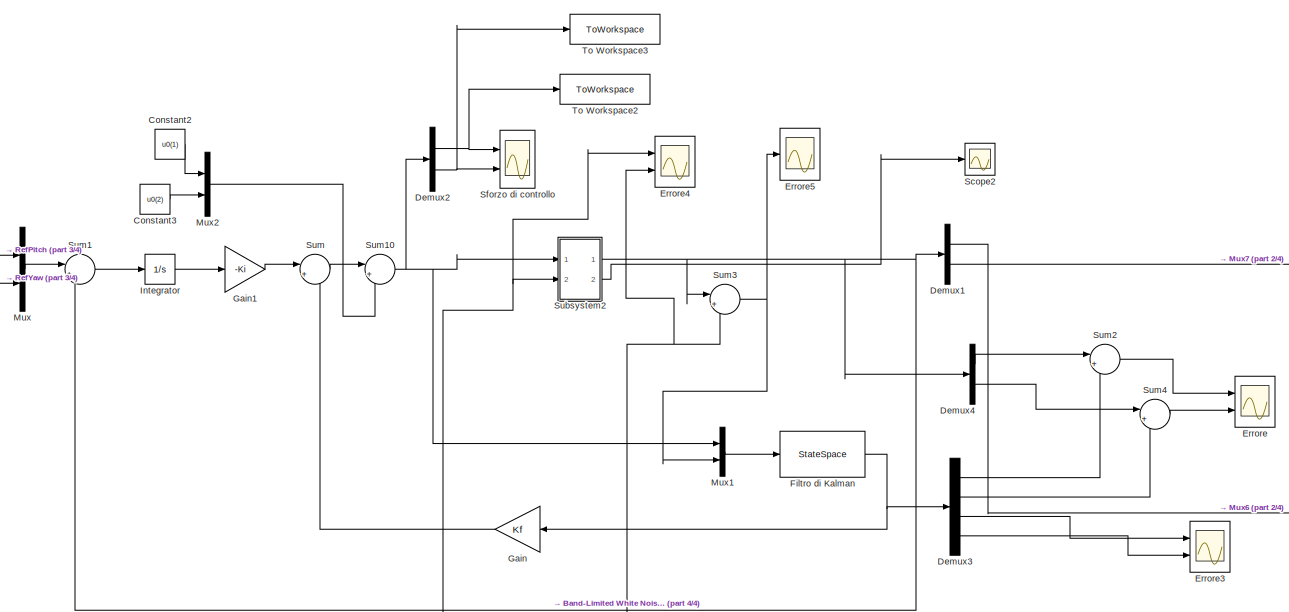
[diagram: root canvas - part 1/4, top center region]
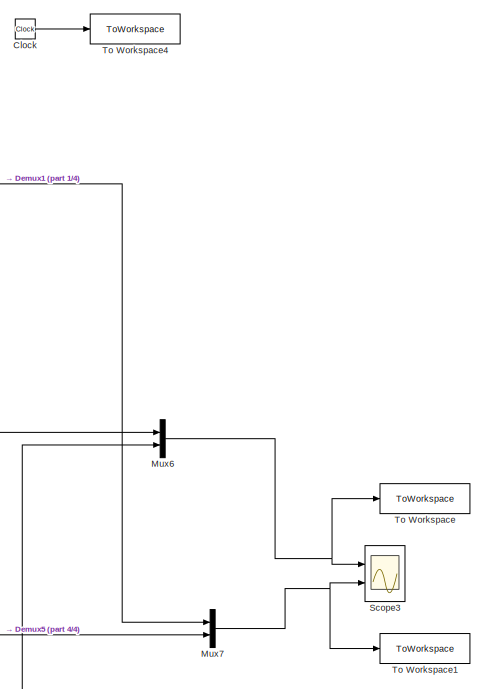
[diagram: root canvas - part 2/4, middle right region]
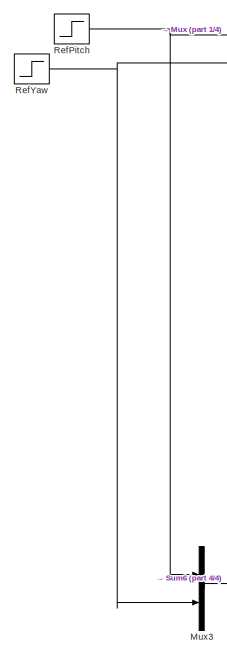
[diagram: root canvas - part 3/4, middle left region]
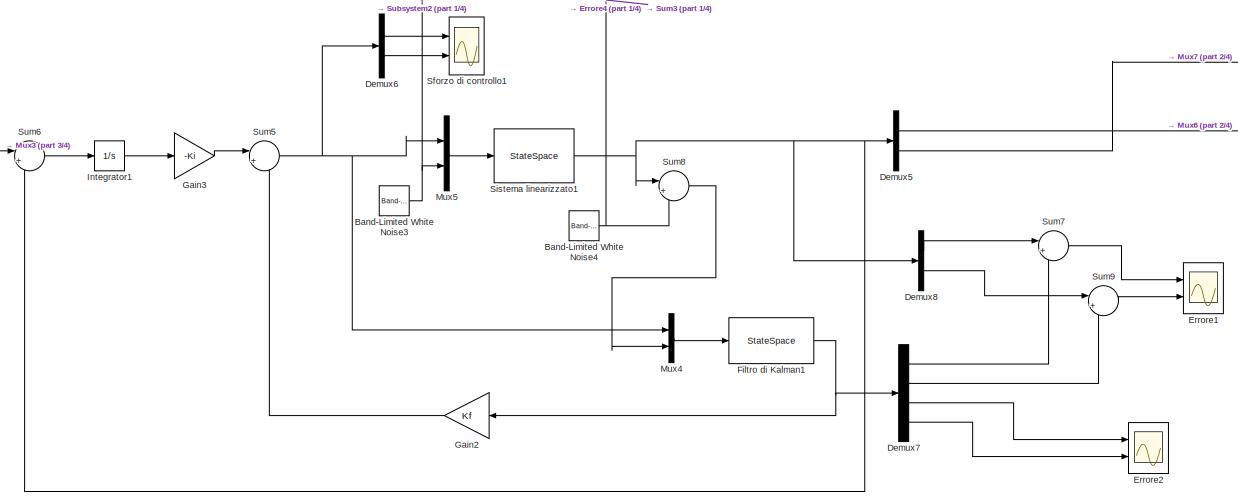
[diagram: root canvas - part 4/4, bottom center region]
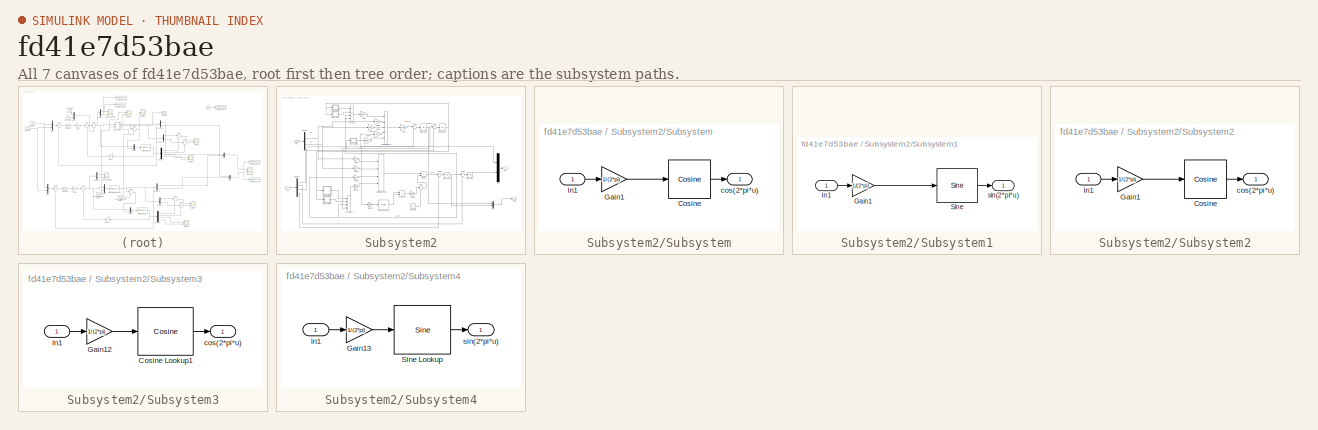
[diagram: thumbnail index - all 7 canvases of the model, root first then tree order]
MODEL slx_fd41e7d53bae
KIND model
CONFIG AbsTol = auto
CONFIG EnableMultiTasking = off
CONFIG FixedStep = auto
CONFIG MaxStep = 1e-3
CONFIG MinStep = auto
CONFIG RelTol = 1e-3
CONFIG SampleTimeConstraint = Unconstrained
CONFIG SolverName = VariableStepAuto
CONFIG StartTime = 0.0
CONFIG StopTime = 7.0
BLOCK [Reference] Band-Limited White Noise3  REF=simulink/Sources/Band-Limited
White Noise
  Ports = [0, 1]
  SourceBlock = simulink/Sources/Band-Limited\nWhite Noise
  SourceProductBaseCode = SL
  SourceType = Band-Limited White Noise.
BLOCK [Reference] Band-Limited White Noise4  REF=simulink/Sources/Band-Limited
White Noise
  Ports = [0, 1]
  SourceBlock = simulink/Sources/Band-Limited\nWhite Noise
  SourceProductBaseCode = SL
  SourceType = Band-Limited White Noise.
BLOCK [Clock] Clock
BLOCK [Constant] Constant2
  Value = u0(1)
BLOCK [Constant] Constant3
  Value = u0(2)
BLOCK [Demux] Demux1
  Outputs = 2
  Ports = [1, 2]
BLOCK [Demux] Demux2
  Outputs = 2
  Ports = [1, 2]
BLOCK [Demux] Demux3
  Ports = [1, 4]
BLOCK [Demux] Demux4
  Outputs = 2
  Ports = [1, 2]
BLOCK [Demux] Demux5
  Outputs = 2
  Ports = [1, 2]
BLOCK [Demux] Demux6
  Outputs = 2
  Ports = [1, 2]
BLOCK [Demux] Demux7
  Ports = [1, 4]
BLOCK [Demux] Demux8
  Outputs = 2
  Ports = [1, 2]
BLOCK [Scope] Errore
  Floating = off
  NumInputPorts = 2
  Ports = [2]
  ScopeSpecificationString = Simulink.scopes.TimeScopeBlockCfg('CurrentConfiguration', extmgr.ConfigurationSet(extmgr.Configuration('Core','General UI',true),extmgr.Configuration('Core','Source UI',true),extmgr.Configuration('Sources','WiredSimulink',true,'DataLoggingVariableName','ScopeData1'),extmgr.Configuration('Visuals','Time Domain',true,'SerializedDisplays',{struct('MinYLimReal','-0.03543','MaxYLimReal','0.00394','YLab...<+2076ch>
BLOCK [Scope] Errore1
  Floating = off
  NumInputPorts = 2
  Ports = [2]
  ScopeSpecificationString = Simulink.scopes.TimeScopeBlockCfg('CurrentConfiguration', extmgr.ConfigurationSet(extmgr.Configuration('Core','General UI',true),extmgr.Configuration('Core','Source UI',true),extmgr.Configuration('Sources','WiredSimulink',true,'DataLoggingVariableName','ScopeData2'),extmgr.Configuration('Visuals','Time Domain',true,'SerializedDisplays',{struct('MinYLimReal','-0.00019','MaxYLimReal','0.00019','YLab...<+2076ch>
BLOCK [Scope] Errore2
  Floating = off
  NumInputPorts = 2
  Ports = [2]
  ScopeSpecificationString = Simulink.scopes.TimeScopeBlockCfg('CurrentConfiguration', extmgr.ConfigurationSet(extmgr.Configuration('Core','General UI',true),extmgr.Configuration('Core','Source UI',true),extmgr.Configuration('Sources','WiredSimulink',true,'DataLoggingVariableName','ScopeData3'),extmgr.Configuration('Visuals','Time Domain',true,'SerializedDisplays',{struct('MinYLimReal','-0.18235','MaxYLimReal','0.16913','YLab...<+2083ch>
BLOCK [Scope] Errore3
  Floating = off
  NumInputPorts = 2
  Ports = [2]
  ScopeSpecificationString = Simulink.scopes.TimeScopeBlockCfg('CurrentConfiguration', extmgr.ConfigurationSet(extmgr.Configuration('Core','General UI',true),extmgr.Configuration('Core','Source UI',true),extmgr.Configuration('Sources','WiredSimulink',true,'DataLoggingVariableName','ScopeData4'),extmgr.Configuration('Visuals','Time Domain',true,'SerializedDisplays',{struct('MinYLimReal','-2.30578','MaxYLimReal','4.27324','YLab...<+2083ch>
BLOCK [Scope] Errore4
  Floating = off
  NumInputPorts = 2
  Ports = [2]
  ScopeSpecificationString = Simulink.scopes.TimeScopeBlockCfg('CurrentConfiguration', extmgr.ConfigurationSet(extmgr.Configuration('Core','General UI',true),extmgr.Configuration('Core','Source UI',true),extmgr.Configuration('Sources','WiredSimulink',true,'DataLoggingVariableName','ScopeData5'),extmgr.Configuration('Visuals','Time Domain',true,'SerializedDisplays',{struct('MinYLimReal','-0.55711','MaxYLimReal','0.5986','YLabe...<+2219ch>
BLOCK [Scope] Errore5
  Floating = off
  NumInputPorts = 1
  Ports = [1]
  ScopeSpecificationString = Simulink.scopes.TimeScopeBlockCfg('CurrentConfiguration', extmgr.ConfigurationSet(extmgr.Configuration('Core','General UI',true),extmgr.Configuration('Core','Source UI',true),extmgr.Configuration('Sources','WiredSimulink',true,'DataLoggingVariableName','ScopeData6'),extmgr.Configuration('Visuals','Time Domain',true,'SerializedDisplays',{struct('MinYLimReal','-2.02242','MaxYLimReal','2.96004','YLab...<+1497ch>
BLOCK [StateSpace] Filtro di Kalman
  A = Afk
  B = Bfk
  C = Cfk
  D = Dfk
  InitialCondition = 0
  Ports = [1, 1]
BLOCK [StateSpace] Filtro di Kalman1
  A = Afk
  B = Bfk
  C = Cfk
  D = Dfk
  InitialCondition = 0
  Ports = [1, 1]
BLOCK [Gain] Gain
  Gain = Kf
  Multiplication = Matrix(K*u)
BLOCK [Gain] Gain1
  Gain = -Ki
  Multiplication = Matrix(K*u)
BLOCK [Gain] Gain2
  Gain = Kf
  Multiplication = Matrix(K*u)
BLOCK [Gain] Gain3
  Gain = -Ki
  Multiplication = Matrix(K*u)
BLOCK [Integrator] Integrator
  Ports = [1, 1]
BLOCK [Integrator] Integrator1
  Ports = [1, 1]
BLOCK [Mux] Mux
  DisplayOption = bar
  Inputs = 2
  Ports = [2, 1]
BLOCK [Mux] Mux1
  DisplayOption = bar
  Inputs = 2
  Ports = [2, 1]
BLOCK [Mux] Mux2
  DisplayOption = bar
  Inputs = 2
  Ports = [2, 1]
BLOCK [Mux] Mux3
  DisplayOption = bar
  Inputs = 2
  Ports = [2, 1]
BLOCK [Mux] Mux4
  DisplayOption = bar
  Inputs = 2
  Ports = [2, 1]
BLOCK [Mux] Mux5
  DisplayOption = bar
  Inputs = 2
  Ports = [2, 1]
BLOCK [Mux] Mux6
  DisplayOption = bar
  Inputs = 2
  Ports = [2, 1]
BLOCK [Mux] Mux7
  DisplayOption = bar
  Inputs = 2
  Ports = [2, 1]
BLOCK [Step] RefPitch
  After = 0.3
  SampleTime = 0
  Time = 0.1
BLOCK [Step] RefYaw
  After = 0.3
  SampleTime = 0
  Time = 0.1
BLOCK [Scope] Scope2
  Floating = off
  NumInputPorts = 1
  Ports = [1]
  ScopeSpecificationString = Simulink.scopes.TimeScopeBlockCfg('CurrentConfiguration', extmgr.ConfigurationSet(extmgr.Configuration('Core','General UI',true),extmgr.Configuration('Core','Source UI',true),extmgr.Configuration('Sources','WiredSimulink',true,'DataLoggingVariableName','ScopeData7'),extmgr.Configuration('Visuals','Time Domain',true,'SerializedDisplays',{struct('MinYLimReal','-2.25411','MaxYLimReal','4.93418','YLab...<+1432ch>
BLOCK [Scope] Scope3
  Floating = off
  NumInputPorts = 2
  Ports = [2]
  ScopeSpecificationString = Simulink.scopes.TimeScopeBlockCfg('CurrentConfiguration', extmgr.ConfigurationSet(extmgr.Configuration('Core','General UI',true),extmgr.Configuration('Core','Source UI',true),extmgr.Configuration('Sources','WiredSimulink',true,'DataLoggingVariableName','ScopeData8'),extmgr.Configuration('Visuals','Time Domain',true,'SerializedDisplays',{struct('MinYLimReal','-0.14744','MaxYLimReal','0.36946','YLab...<+2130ch>
BLOCK [Scope] Sforzo di controllo
  Floating = off
  NumInputPorts = 2
  Ports = [2]
  ScopeSpecificationString = Simulink.scopes.TimeScopeBlockCfg('CurrentConfiguration', extmgr.ConfigurationSet(extmgr.Configuration('Core','General UI',true),extmgr.Configuration('Core','Source UI',true),extmgr.Configuration('Sources','WiredSimulink',true,'DataLoggingVariableName','ScopeData9'),extmgr.Configuration('Visuals','Time Domain',true,'SerializedDisplays',{struct('MinYLimReal','3.55699','MaxYLimReal','16.91687','YLab...<+2067ch>
BLOCK [Scope] Sforzo di controllo1
  Floating = off
  NumInputPorts = 2
  Ports = [2]
  ScopeSpecificationString = Simulink.scopes.TimeScopeBlockCfg('CurrentConfiguration', extmgr.ConfigurationSet(extmgr.Configuration('Core','General UI',true),extmgr.Configuration('Core','Source UI',true),extmgr.Configuration('Sources','WiredSimulink',true),extmgr.Configuration('Visuals','Time Domain',true,'SerializedDisplays',{struct('MinYLimReal','-1.96046','MaxYLimReal','1.87214','YLabelReal','','MinYLimMag','0.00000','MaxY...<+2002ch>
BLOCK [StateSpace] Sistema linearizzato1
  A = A
  B = [B eye(4)]
  C = C
  D = [D zeros(2,4)]
  InitialCondition = [0;0;0;0]
  Ports = [1, 1]
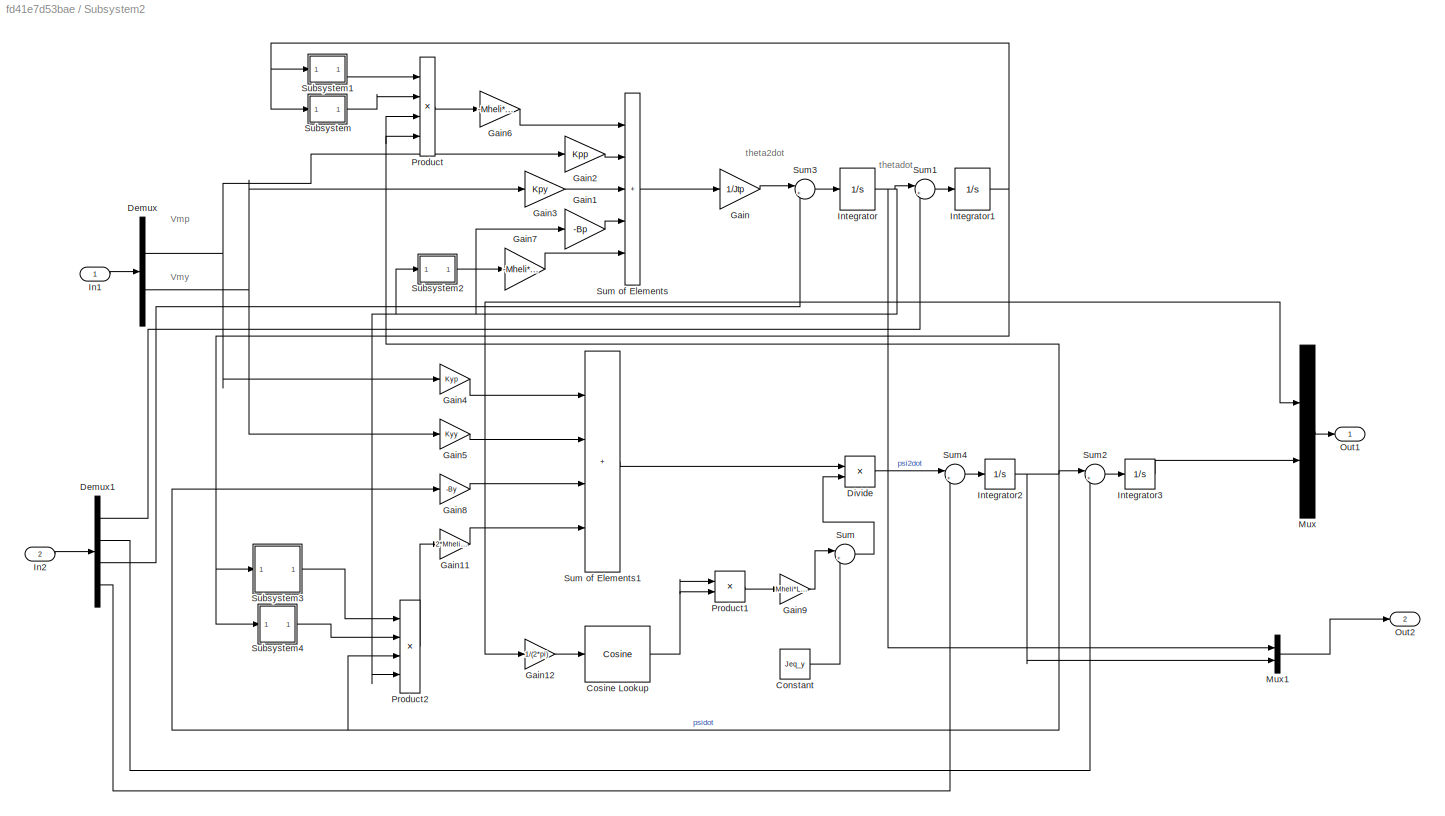
BLOCK [SubSystem] Subsystem2
  Ports = [2, 2]
  RequestExecContextInheritance = off
BLOCK [Constant] Subsystem2/Constant
  Value = Jeq_y
BLOCK [Reference] Subsystem2/Cosine Lookup  REF=simulink/Lookup
Tables/Cosine
  Ports = [1, 1]
  SourceBlock = simulink/Lookup\nTables/Cosine
  SourceProductBaseCode = SL
  SourceType = Sine and Cosine
BLOCK [Demux] Subsystem2/Demux
  Outputs = 2
  Ports = [1, 2]
BLOCK [Demux] Subsystem2/Demux1
  Ports = [1, 4]
BLOCK [Product] Subsystem2/Divide
  Inputs = */
  Ports = [2, 1]
BLOCK [Gain] Subsystem2/Gain
  Gain = 1/Jtp
BLOCK [Gain] Subsystem2/Gain1
  Gain = -Bp
BLOCK [Gain] Subsystem2/Gain11
  Gain = 2*Mheli*Lcm^2
BLOCK [Gain] Subsystem2/Gain12
  Gain = 1/(2*pi)
BLOCK [Gain] Subsystem2/Gain2
  Gain = Kpp
BLOCK [Gain] Subsystem2/Gain3
  Gain = Kpy
BLOCK [Gain] Subsystem2/Gain4
  Gain = Kyp
BLOCK [Gain] Subsystem2/Gain5
  Gain = Kyy
BLOCK [Gain] Subsystem2/Gain6
  Gain = -Mheli*Lcm^2
BLOCK [Gain] Subsystem2/Gain7
  Gain = -Mheli*g*Lcm
BLOCK [Gain] Subsystem2/Gain8
  Gain = -By
BLOCK [Gain] Subsystem2/Gain9
  Gain = Mheli*Lcm^2
BLOCK [Inport] Subsystem2/In1
BLOCK [Inport] Subsystem2/In2
  Port = 2
BLOCK [Integrator] Subsystem2/Integrator
  Ports = [1, 1]
BLOCK [Integrator] Subsystem2/Integrator1
  Ports = [1, 1]
BLOCK [Integrator] Subsystem2/Integrator2
  Ports = [1, 1]
BLOCK [Integrator] Subsystem2/Integrator3
  Ports = [1, 1]
BLOCK [Mux] Subsystem2/Mux
  DisplayOption = bar
  Inputs = 2
  Ports = [2, 1]
BLOCK [Mux] Subsystem2/Mux1
  DisplayOption = bar
  Inputs = 2
  Ports = [2, 1]
BLOCK [Outport] Subsystem2/Out1
BLOCK [Outport] Subsystem2/Out2
  Port = 2
BLOCK [Product] Subsystem2/Product
  Inputs = 4
  Ports = [4, 1]
BLOCK [Product] Subsystem2/Product1
  Ports = [2, 1]
BLOCK [Product] Subsystem2/Product2
  Inputs = 4
  Ports = [4, 1]
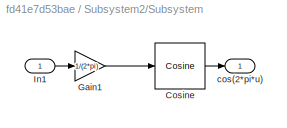
BLOCK [SubSystem] Subsystem2/Subsystem
  Ports = [1, 1]
  RequestExecContextInheritance = off
BLOCK [Reference] Subsystem2/Subsystem/Cosine  REF=simulink/Lookup
Tables/Cosine
  Ports = [1, 1]
  SourceBlock = simulink/Lookup\nTables/Cosine
  SourceProductBaseCode = SL
  SourceType = Sine and Cosine
BLOCK [Gain] Subsystem2/Subsystem/Gain1
  Gain = 1/(2*pi)
BLOCK [Inport] Subsystem2/Subsystem/In1
BLOCK [Outport] Subsystem2/Subsystem/cos(2*pi*u)
BLOCK [SubSystem] Subsystem2/Subsystem1
  Ports = [1, 1]
  RequestExecContextInheritance = off
BLOCK [Gain] Subsystem2/Subsystem1/Gain1
  Gain = 1/(2*pi)
BLOCK [Inport] Subsystem2/Subsystem1/In1
BLOCK [Reference] Subsystem2/Subsystem1/Sine  REF=simulink/Lookup
Tables/Sine
  Ports = [1, 1]
  SourceBlock = simulink/Lookup\nTables/Sine
  SourceProductBaseCode = SL
  SourceType = Sine and Cosine
BLOCK [Outport] Subsystem2/Subsystem1/sin(2*pi*u)
BLOCK [SubSystem] Subsystem2/Subsystem2
  Ports = [1, 1]
  RequestExecContextInheritance = off
BLOCK [Reference] Subsystem2/Subsystem2/Cosine  REF=simulink/Lookup
Tables/Cosine
  Ports = [1, 1]
  SourceBlock = simulink/Lookup\nTables/Cosine
  SourceProductBaseCode = SL
  SourceType = Sine and Cosine
BLOCK [Gain] Subsystem2/Subsystem2/Gain1
  Gain = 1/(2*pi)
BLOCK [Inport] Subsystem2/Subsystem2/In1
BLOCK [Outport] Subsystem2/Subsystem2/cos(2*pi*u)
BLOCK [SubSystem] Subsystem2/Subsystem3
  Ports = [1, 1]
  RequestExecContextInheritance = off
BLOCK [Reference] Subsystem2/Subsystem3/Cosine Lookup1  REF=simulink/Lookup
Tables/Cosine
  Ports = [1, 1]
  SourceBlock = simulink/Lookup\nTables/Cosine
  SourceProductBaseCode = SL
  SourceType = Sine and Cosine
BLOCK [Gain] Subsystem2/Subsystem3/Gain12
  Gain = 1/(2*pi)
BLOCK [Inport] Subsystem2/Subsystem3/In1
BLOCK [Outport] Subsystem2/Subsystem3/cos(2*pi*u)
BLOCK [SubSystem] Subsystem2/Subsystem4
  Ports = [1, 1]
  RequestExecContextInheritance = off
BLOCK [Gain] Subsystem2/Subsystem4/Gain13
  Gain = 1/(2*pi)
BLOCK [Inport] Subsystem2/Subsystem4/In1
BLOCK [Reference] Subsystem2/Subsystem4/Sine Lookup  REF=simulink/Lookup
Tables/Sine
  Ports = [1, 1]
  SourceBlock = simulink/Lookup\nTables/Sine
  SourceProductBaseCode = SL
  SourceType = Sine and Cosine
BLOCK [Outport] Subsystem2/Subsystem4/sin(2*pi*u)
BLOCK [Sum] Subsystem2/Sum
  Inputs = |++
  Ports = [2, 1]
BLOCK [Sum] Subsystem2/Sum of Elements
  IconShape = rectangular
  Inputs = +++++
  Ports = [5, 1]
BLOCK [Sum] Subsystem2/Sum of Elements1
  IconShape = rectangular
  Inputs = ++++
  Ports = [4, 1]
BLOCK [Sum] Subsystem2/Sum1
  Inputs = |++
  Ports = [2, 1]
BLOCK [Sum] Subsystem2/Sum2
  Inputs = |++
  Ports = [2, 1]
BLOCK [Sum] Subsystem2/Sum3
  Inputs = |++
  Ports = [2, 1]
BLOCK [Sum] Subsystem2/Sum4
  Inputs = |++
  Ports = [2, 1]
BLOCK [Sum] Sum
  Inputs = |+-
  Ports = [2, 1]
BLOCK [Sum] Sum1
  Inputs = |+-
  Ports = [2, 1]
BLOCK [Sum] Sum10
  Inputs = |++
  Ports = [2, 1]
BLOCK [Sum] Sum2
  Inputs = |+-
  Ports = [2, 1]
BLOCK [Sum] Sum3
  Inputs = |++
  Ports = [2, 1]
BLOCK [Sum] Sum4
  Inputs = |+-
  Ports = [2, 1]
BLOCK [Sum] Sum5
  Inputs = |+-
  Ports = [2, 1]
BLOCK [Sum] Sum6
  Inputs = |+-
  Ports = [2, 1]
BLOCK [Sum] Sum7
  Inputs = |+-
  Ports = [2, 1]
BLOCK [Sum] Sum8
  Inputs = |++
  Ports = [2, 1]
BLOCK [Sum] Sum9
  Inputs = |+-
  Ports = [2, 1]
BLOCK [ToWorkspace] To Workspace
  FixptAsFi = on
  MaxDataPoints = inf
  Ports = [1]
  SampleTime = -1
  Save2DSignal = 2-D array (concatenate along first dimension)
  VariableName = pitch
BLOCK [ToWorkspace] To Workspace1
  FixptAsFi = on
  MaxDataPoints = inf
  Ports = [1]
  SampleTime = -1
  Save2DSignal = 2-D array (concatenate along first dimension)
  VariableName = yaw
BLOCK [ToWorkspace] To Workspace2
  FixptAsFi = on
  MaxDataPoints = inf
  Ports = [1]
  SampleTime = -1
  Save2DSignal = 2-D array (concatenate along first dimension)
  VariableName = motorpitch
BLOCK [ToWorkspace] To Workspace3
  FixptAsFi = on
  MaxDataPoints = inf
  Ports = [1]
  SampleTime = -1
  Save2DSignal = 2-D array (concatenate along first dimension)
  VariableName = motoryaw
BLOCK [ToWorkspace] To Workspace4
  FixptAsFi = on
  MaxDataPoints = inf
  Ports = [1]
  SampleTime = -1
  Save2DSignal = 2-D array (concatenate along first dimension)
  VariableName = t
ANNOTATION Subsystem2: Vmp
ANNOTATION Subsystem2: Vmy
ANNOTATION Subsystem2: theta2dot
ANNOTATION Subsystem2: thetadot
NET Band-Limited White Noise3:1 -> Errore4:1, Mux5:2, Subsystem2:2
NET Band-Limited White Noise4:1 -> Errore4:2, Sum3:2, Sum8:2
LINE Clock:1 -> To Workspace4:1
LINE Constant2:1 -> Mux2:1
LINE Constant3:1 -> Mux2:2
LINE Demux1:1 -> Mux6:1
LINE Demux1:2 -> Mux7:1
NET Demux2:1 -> Sforzo di controllo:1, To Workspace2:1
NET Demux2:2 -> Sforzo di controllo:2, To Workspace3:1
LINE Demux3:1 -> Sum2:2
LINE Demux3:2 -> Sum4:2
LINE Demux3:3 -> Errore3:1
LINE Demux3:4 -> Errore3:2
LINE Demux4:1 -> Sum2:1
LINE Demux4:2 -> Sum4:1
LINE Demux5:1 -> Mux6:2
LINE Demux5:2 -> Mux7:2
LINE Demux6:1 -> Sforzo di controllo1:1
LINE Demux6:2 -> Sforzo di controllo1:2
LINE Demux7:1 -> Sum7:2
LINE Demux7:2 -> Sum9:2
LINE Demux7:3 -> Errore2:1
LINE Demux7:4 -> Errore2:2
LINE Demux8:1 -> Sum7:1
LINE Demux8:2 -> Sum9:1
NET Filtro di Kalman1:1 -> Demux7:1, Gain2:1
NET Filtro di Kalman:1 -> Demux3:1, Gain:1
LINE Gain1:1 -> Sum:1
LINE Gain2:1 -> Sum5:2
LINE Gain3:1 -> Sum5:1
LINE Gain:1 -> Sum:2
LINE Integrator1:1 -> Gain3:1
LINE Integrator:1 -> Gain1:1
LINE Mux1:1 -> Filtro di Kalman:1
LINE Mux2:1 -> Sum10:2
LINE Mux3:1 -> Sum6:1
LINE Mux4:1 -> Filtro di Kalman1:1
LINE Mux5:1 -> Sistema linearizzato1:1
NET Mux6:1 -> Scope3:1, To Workspace:1
NET Mux7:1 -> Scope3:2, To Workspace1:1
LINE Mux:1 -> Sum1:1
NET RefPitch:1 -> Mux3:1, Mux:1
NET RefYaw:1 -> Mux3:2, Mux:2
NET Sistema linearizzato1:1 -> Demux5:1, Demux8:1, Sum6:2, Sum8:1
LINE Subsystem2/Constant:1 -> Subsystem2/Sum:2
NET Subsystem2/Cosine Lookup:1 -> Subsystem2/Product1:1, Subsystem2/Product1:2
LINE Subsystem2/Demux1:1 -> Subsystem2/Sum1:2
LINE Subsystem2/Demux1:2 -> Subsystem2/Sum2:2
LINE Subsystem2/Demux1:3 -> Subsystem2/Sum3:2
LINE Subsystem2/Demux1:4 -> Subsystem2/Sum4:2
NET Subsystem2/Demux:1 -> Subsystem2/Gain2:1, Subsystem2/Gain4:1
NET Subsystem2/Demux:2 -> Subsystem2/Gain3:1, Subsystem2/Gain5:1
LINE Subsystem2/Divide:1 -> Subsystem2/Sum4:1
LINE Subsystem2/Gain11:1 -> Subsystem2/Sum of Elements1:4
LINE Subsystem2/Gain12:1 -> Subsystem2/Cosine Lookup:1
LINE Subsystem2/Gain1:1 -> Subsystem2/Sum of Elements:4
LINE Subsystem2/Gain2:1 -> Subsystem2/Sum of Elements:2
LINE Subsystem2/Gain3:1 -> Subsystem2/Sum of Elements:3
LINE Subsystem2/Gain4:1 -> Subsystem2/Sum of Elements1:1
LINE Subsystem2/Gain5:1 -> Subsystem2/Sum of Elements1:2
LINE Subsystem2/Gain6:1 -> Subsystem2/Sum of Elements:1
LINE Subsystem2/Gain7:1 -> Subsystem2/Sum of Elements:5
LINE Subsystem2/Gain8:1 -> Subsystem2/Sum of Elements1:3
LINE Subsystem2/Gain9:1 -> Subsystem2/Sum:1
LINE Subsystem2/Gain:1 -> Subsystem2/Sum3:1
LINE Subsystem2/In1:1 -> Subsystem2/Demux:1
LINE Subsystem2/In2:1 -> Subsystem2/Demux1:1
NET Subsystem2/Integrator1:1 -> Subsystem2/Gain12:1, Subsystem2/Mux:1, Subsystem2/Subsystem1:1, Subsystem2/Subsystem3:1, Subsystem2/Subsystem4:1, Subsystem2/Subsystem:1
NET Subsystem2/Integrator2:1 -> Subsystem2/Gain8:1, Subsystem2/Mux1:2, Subsystem2/Product2:3, Subsystem2/Product:3, Subsystem2/Product:4, Subsystem2/Sum2:1
LINE Subsystem2/Integrator3:1 -> Subsystem2/Mux:2
NET Subsystem2/Integrator:1 -> Subsystem2/Gain1:1, Subsystem2/Mux1:1, Subsystem2/Product2:4, Subsystem2/Subsystem2:1, Subsystem2/Sum1:1
LINE Subsystem2/Mux1:1 -> Subsystem2/Out2:1
LINE Subsystem2/Mux:1 -> Subsystem2/Out1:1
LINE Subsystem2/Product1:1 -> Subsystem2/Gain9:1
LINE Subsystem2/Product2:1 -> Subsystem2/Gain11:1
LINE Subsystem2/Product:1 -> Subsystem2/Gain6:1
LINE Subsystem2/Subsystem/Cosine:1 -> Subsystem2/Subsystem/cos(2*pi*u):1
LINE Subsystem2/Subsystem/Gain1:1 -> Subsystem2/Subsystem/Cosine:1
LINE Subsystem2/Subsystem/In1:1 -> Subsystem2/Subsystem/Gain1:1
LINE Subsystem2/Subsystem1/Gain1:1 -> Subsystem2/Subsystem1/Sine:1
LINE Subsystem2/Subsystem1/In1:1 -> Subsystem2/Subsystem1/Gain1:1
LINE Subsystem2/Subsystem1/Sine:1 -> Subsystem2/Subsystem1/sin(2*pi*u):1
LINE Subsystem2/Subsystem1:1 -> Subsystem2/Product:1
LINE Subsystem2/Subsystem2/Cosine:1 -> Subsystem2/Subsystem2/cos(2*pi*u):1
LINE Subsystem2/Subsystem2/Gain1:1 -> Subsystem2/Subsystem2/Cosine:1
LINE Subsystem2/Subsystem2/In1:1 -> Subsystem2/Subsystem2/Gain1:1
LINE Subsystem2/Subsystem2:1 -> Subsystem2/Gain7:1
LINE Subsystem2/Subsystem3/Cosine Lookup1:1 -> Subsystem2/Subsystem3/cos(2*pi*u):1
LINE Subsystem2/Subsystem3/Gain12:1 -> Subsystem2/Subsystem3/Cosine Lookup1:1
LINE Subsystem2/Subsystem3/In1:1 -> Subsystem2/Subsystem3/Gain12:1
LINE Subsystem2/Subsystem3:1 -> Subsystem2/Product2:1
LINE Subsystem2/Subsystem4/Gain13:1 -> Subsystem2/Subsystem4/Sine Lookup:1
LINE Subsystem2/Subsystem4/In1:1 -> Subsystem2/Subsystem4/Gain13:1
LINE Subsystem2/Subsystem4/Sine Lookup:1 -> Subsystem2/Subsystem4/sin(2*pi*u):1
LINE Subsystem2/Subsystem4:1 -> Subsystem2/Product2:2
LINE Subsystem2/Subsystem:1 -> Subsystem2/Product:2
LINE Subsystem2/Sum of Elements1:1 -> Subsystem2/Divide:1
LINE Subsystem2/Sum of Elements:1 -> Subsystem2/Gain:1
LINE Subsystem2/Sum1:1 -> Subsystem2/Integrator1:1
LINE Subsystem2/Sum2:1 -> Subsystem2/Integrator3:1
LINE Subsystem2/Sum3:1 -> Subsystem2/Integrator:1
LINE Subsystem2/Sum4:1 -> Subsystem2/Integrator2:1
LINE Subsystem2/Sum:1 -> Subsystem2/Divide:2
NET Subsystem2:1 -> Demux1:1, Demux4:1, Sum1:2, Sum3:1
LINE Subsystem2:2 -> Scope2:1
NET Sum10:1 -> Demux2:1, Mux1:1, Subsystem2:1
LINE Sum1:1 -> Integrator:1
LINE Sum2:1 -> Errore:1
NET Sum3:1 -> Errore5:1, Mux1:2
LINE Sum4:1 -> Errore:2
NET Sum5:1 -> Demux6:1, Mux4:1, Mux5:1
LINE Sum6:1 -> Integrator1:1
LINE Sum7:1 -> Errore1:1
LINE Sum8:1 -> Mux4:2
LINE Sum9:1 -> Errore1:2
LINE Sum:1 -> Sum10:1
note: NET lines group one-source signal fan-out (src -> all destinations, sorted); 1:1 wires keep LINE
